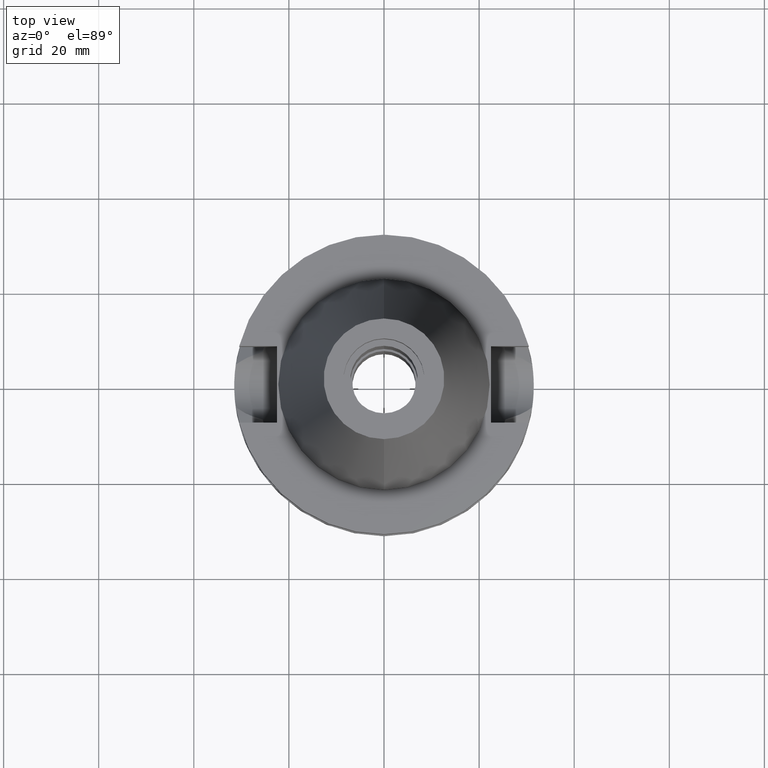
[diagram: clean part render]
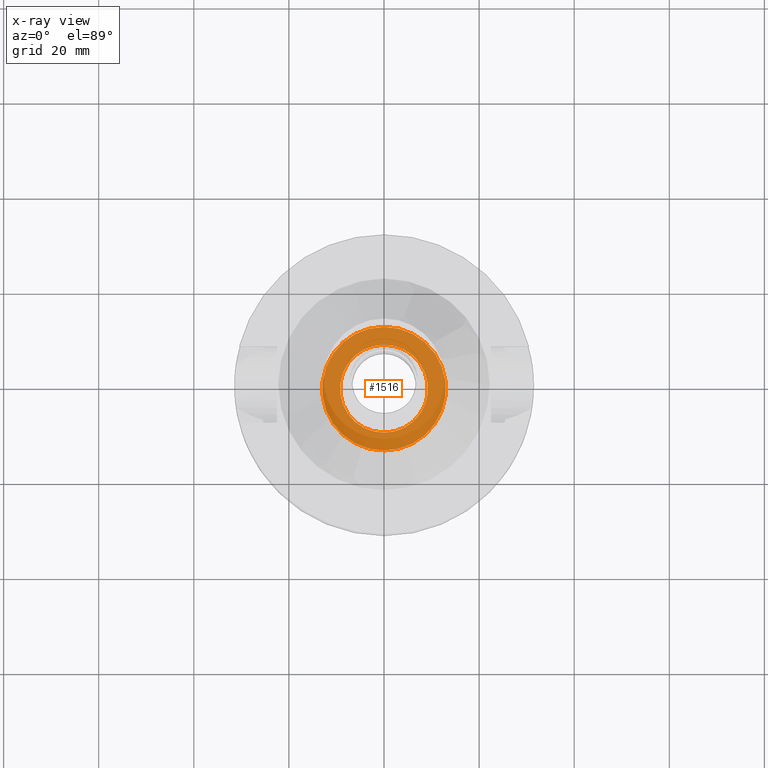
[diagram: x-ray — body ghosted, one internal face saturated and labeled with its STEP entity id]
A machine part, top view, then the same camera in x-ray: the body is ghosted and one INTERNAL B-rep face — a face not visible from any outside direction — is saturated and labeled: STEP entity #1516.
In plain terms, the highlighted planar face has unit normal (0, 0, -1).
Its self-contained STEP definition (entity closure, byte-faithful):
#60 = ORIENTED_EDGE ( 'NONE', *, *, #3286, .F. ) ;
#90 = VERTEX_POINT ( 'NONE', #2291 ) ;
#159 = DIRECTION ( 'NONE',  ( 0.0000000000000000000, 0.0000000000000000000, 1.000000000000000000 ) ) ;
#170 = CARTESIAN_POINT ( 'NONE',  ( 0.0000000000000000000, 0.0000000000000000000, -11.00000000000000000 ) ) ;
#363 = CARTESIAN_POINT ( 'NONE',  ( 0.0000000000000000000, 0.0000000000000000000, -11.00000000000000000 ) ) ;
#453 = ORIENTED_EDGE ( 'NONE', *, *, #2863, .F. ) ;
#491 = CARTESIAN_POINT ( 'NONE',  ( 0.0000000000000000000, 0.0000000000000000000, -11.00000000000000000 ) ) ;
#597 = CIRCLE ( 'NONE', #1679, 9.250000000000000000 ) ;
#652 = EDGE_LOOP ( 'NONE', ( #60, #2672 ) ) ;
#851 = EDGE_LOOP ( 'NONE', ( #453, #1947 ) ) ;
#874 = AXIS2_PLACEMENT_3D ( 'NONE', #491, #159, #3422 ) ;
#927 = AXIS2_PLACEMENT_3D ( 'NONE', #2871, #1430, #2507 ) ;
#1153 = FACE_OUTER_BOUND ( 'NONE', #652, .T. ) ;
#1211 = EDGE_CURVE ( 'NONE', #90, #3121, #1219, .T. ) ;
#1219 = CIRCLE ( 'NONE', #927, 13.00000000000000000 ) ;
#1430 = DIRECTION ( 'NONE',  ( 0.0000000000000000000, 0.0000000000000000000, -1.000000000000000000 ) ) ;
#1516 = ADVANCED_FACE ( 'NONE', ( #1153, #1758 ), #2267, .F. ) ;
#1605 = DIRECTION ( 'NONE',  ( 0.0000000000000000000, 0.0000000000000000000, 1.000000000000000000 ) ) ;
#1647 = CARTESIAN_POINT ( 'NONE',  ( 0.0000000000000000000, 13.00000000000000000, -11.00000000000000000 ) ) ;
#1679 = AXIS2_PLACEMENT_3D ( 'NONE', #170, #1605, #2125 ) ;
#1689 = DIRECTION ( 'NONE',  ( 0.0000000000000000000, -1.000000000000000000, 0.0000000000000000000 ) ) ;
#1758 = FACE_BOUND ( 'NONE', #851, .T. ) ;
#1814 = EDGE_CURVE ( 'NONE', #2484, #2021, #3552, .T. ) ;
#1947 = ORIENTED_EDGE ( 'NONE', *, *, #1814, .F. ) ;
#1958 = DIRECTION ( 'NONE',  ( 0.0000000000000000000, 0.0000000000000000000, -1.000000000000000000 ) ) ;
#2021 = VERTEX_POINT ( 'NONE', #2553 ) ;
#2125 = DIRECTION ( 'NONE',  ( 0.0000000000000000000, 1.000000000000000000, 0.0000000000000000000 ) ) ;
#2267 = PLANE ( 'NONE',  #2864 ) ;
#2291 = CARTESIAN_POINT ( 'NONE',  ( 0.0000000000000000000, -13.00000000000000000, -11.00000000000000000 ) ) ;
#2333 = CARTESIAN_POINT ( 'NONE',  ( 0.0000000000000000000, 0.0000000000000000000, -11.00000000000000000 ) ) ;
#2484 = VERTEX_POINT ( 'NONE', #3340 ) ;
#2507 = DIRECTION ( 'NONE',  ( 0.0000000000000000000, -1.000000000000000000, 0.0000000000000000000 ) ) ;
#2553 = CARTESIAN_POINT ( 'NONE',  ( 0.0000000000000000000, 9.250000000000000000, -11.00000000000000000 ) ) ;
#2629 = DIRECTION ( 'NONE',  ( 0.0000000000000000000, 1.000000000000000000, 0.0000000000000000000 ) ) ;
#2672 = ORIENTED_EDGE ( 'NONE', *, *, #1211, .F. ) ;
#2773 = CIRCLE ( 'NONE', #2831, 13.00000000000000000 ) ;
#2831 = AXIS2_PLACEMENT_3D ( 'NONE', #2333, #2889, #2629 ) ;
#2863 = EDGE_CURVE ( 'NONE', #2021, #2484, #597, .T. ) ;
#2864 = AXIS2_PLACEMENT_3D ( 'NONE', #363, #1958, #1689 ) ;
#2871 = CARTESIAN_POINT ( 'NONE',  ( 0.0000000000000000000, 0.0000000000000000000, -11.00000000000000000 ) ) ;
#2889 = DIRECTION ( 'NONE',  ( 0.0000000000000000000, 0.0000000000000000000, -1.000000000000000000 ) ) ;
#3121 = VERTEX_POINT ( 'NONE', #1647 ) ;
#3286 = EDGE_CURVE ( 'NONE', #3121, #90, #2773, .T. ) ;
#3340 = CARTESIAN_POINT ( 'NONE',  ( 0.0000000000000000000, -9.250000000000000000, -11.00000000000000000 ) ) ;
#3422 = DIRECTION ( 'NONE',  ( 0.0000000000000000000, -1.000000000000000000, 0.0000000000000000000 ) ) ;
#3552 = CIRCLE ( 'NONE', #874, 9.250000000000000000 ) ;